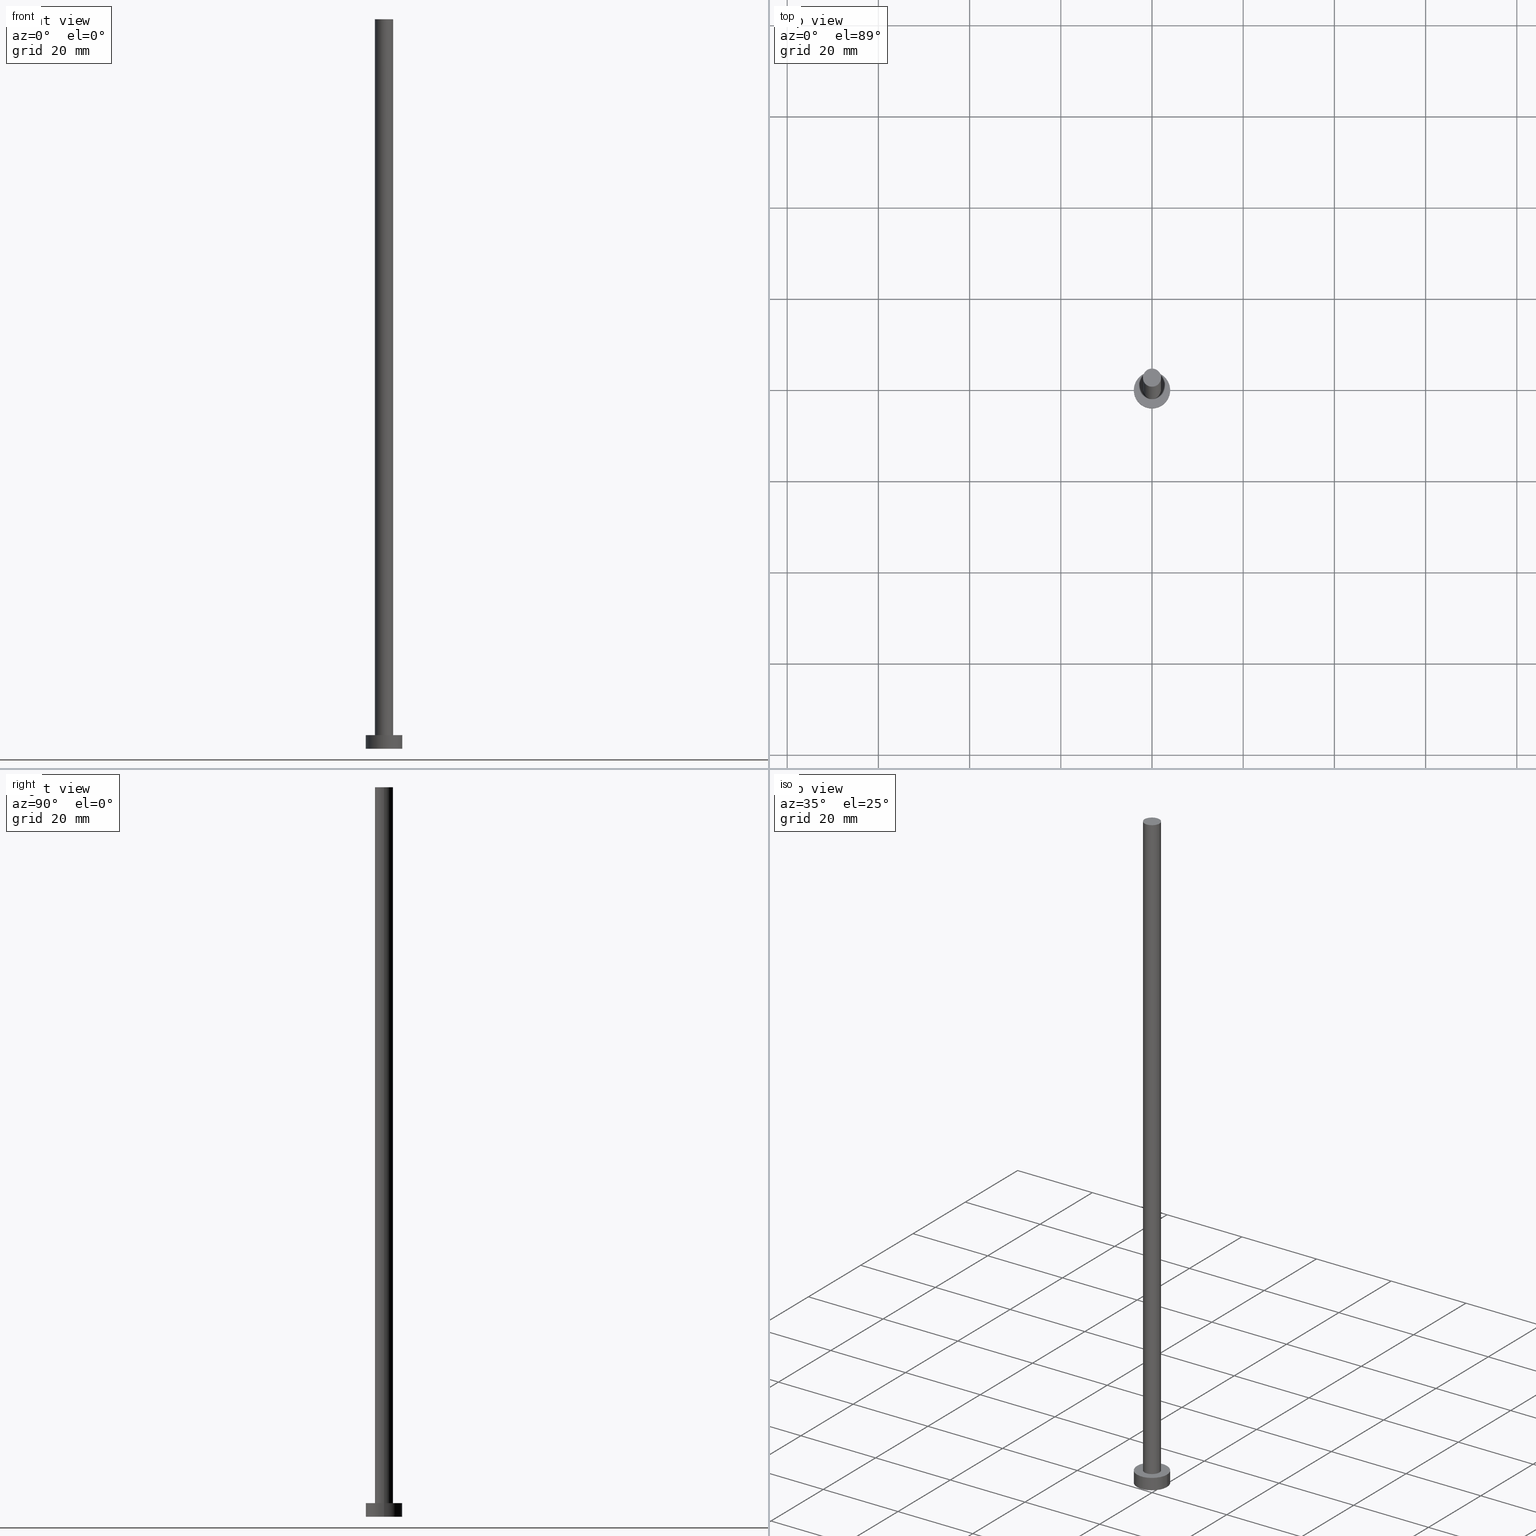
[diagram: canonical four-view strip — front | top / right | iso, engineering-drawing reading convention]
A machine part, canonical four-view strip (front | top / right | iso — engineering-drawing reading convention). The complete STEP part file that produces these views, byte-faithful:
ISO-10303-21;
HEADER;
FILE_DESCRIPTION (( 'STEP AP203' ),
    '1' );
FILE_NAME ('3ff8.STEP',
    '2023-02-13T15:07:44',
    ( '' ),
    ( '' ),
    'SwSTEP 2.0',
    'SolidWorks 2019',
    '' );
FILE_SCHEMA (( 'CONFIG_CONTROL_DESIGN' ));
ENDSEC;

DATA;
#1 = DIRECTION ( 'NONE',  ( 1.000000000000000000, 0.000000000000000000, -0.000000000000000000 ) ) ;
#2 = ORIENTED_EDGE ( 'NONE', *, *, #70, .F. ) ;
#3 = DIRECTION ( 'NONE',  ( -0.000000000000000000, -0.000000000000000000, -1.000000000000000000 ) ) ;
#4 = CALENDAR_DATE ( 2023, 13, 2 ) ;
#5 = DIRECTION ( 'NONE',  ( 1.000000000000000000, 0.000000000000000000, 0.000000000000000000 ) ) ;
#6 = LINE ( 'NONE', #13, #187 ) ;
#7 = PERSON_AND_ORGANIZATION ( #173, #100 ) ;
#8 = DIRECTION ( 'NONE',  ( 1.000000000000000000, 0.000000000000000000, 0.000000000000000000 ) ) ;
#9 =( NAMED_UNIT ( * ) PLANE_ANGLE_UNIT ( ) SI_UNIT ( $, .RADIAN. ) );
#10 = CALENDAR_DATE ( 2023, 13, 2 ) ;
#11 = APPROVAL ( #200, 'NEUR�EN�' ) ;
#12 = DIRECTION ( 'NONE',  ( 1.000000000000000000, 0.000000000000000000, 0.000000000000000000 ) ) ;
#13 = CARTESIAN_POINT ( 'NONE',  ( -4.000000000000000000, 0.000000000000000000, 3.000000000000000000 ) ) ;
#14 = MANIFOLD_SOLID_BREP ( 'P�idat vysunut�m3', #107 ) ;
#15 = DIRECTION ( 'NONE',  ( 1.000000000000000000, 0.000000000000000000, 0.000000000000000000 ) ) ;
#16 = APPROVAL_PERSON_ORGANIZATION ( #113, #188, #44 ) ;
#17 = ORIENTED_EDGE ( 'NONE', *, *, #183, .F. ) ;
#18 = DIRECTION ( 'NONE',  ( 0.000000000000000000, 0.000000000000000000, 1.000000000000000000 ) ) ;
#19 = LOCAL_TIME ( 16, 7, 44.00000000000000000, #198 ) ;
#20 = DIRECTION ( 'NONE',  ( 1.000000000000000000, 0.000000000000000000, -0.000000000000000000 ) ) ;
#21 = ORIENTED_EDGE ( 'NONE', *, *, #159, .T. ) ;
#22 = ORIENTED_EDGE ( 'NONE', *, *, #220, .F. ) ;
#23 = DIRECTION ( 'NONE',  ( 1.000000000000000000, 0.000000000000000000, 0.000000000000000000 ) ) ;
#24 = DATE_AND_TIME ( #83, #19 ) ;
#25 = CYLINDRICAL_SURFACE ( 'NONE', #238, 4.000000000000000000 ) ;
#26 = DIRECTION ( 'NONE',  ( 1.000000000000000000, 0.000000000000000000, 0.000000000000000000 ) ) ;
#27 = CC_DESIGN_APPROVAL ( #77, ( #97 ) ) ;
#28 = COORDINATED_UNIVERSAL_TIME_OFFSET ( 1, 0, .AHEAD. ) ;
#29 = ORIENTED_EDGE ( 'NONE', *, *, #139, .F. ) ;
#30 = PERSON_AND_ORGANIZATION_ROLE ( 'classification_officer' ) ;
#31 = EDGE_LOOP ( 'NONE', ( #74, #2 ) ) ;
#32 = AXIS2_PLACEMENT_3D ( 'NONE', #239, #177, #15 ) ;
#33 = CYLINDRICAL_SURFACE ( 'NONE', #150, 4.000000000000000000 ) ;
#34 = CIRCLE ( 'NONE', #176, 4.000000000000000000 ) ;
#35 = ORIENTED_EDGE ( 'NONE', *, *, #220, .T. ) ;
#36 = DIRECTION ( 'NONE',  ( 0.000000000000000000, 0.000000000000000000, 1.000000000000000000 ) ) ;
#37 = DIRECTION ( 'NONE',  ( -0.000000000000000000, -0.000000000000000000, -1.000000000000000000 ) ) ;
#38 = ADVANCED_FACE ( 'NONE', ( #55 ), #33, .T. ) ;
#39 = EDGE_LOOP ( 'NONE', ( #205, #105 ) ) ;
#40 = DIRECTION ( 'NONE',  ( -0.000000000000000000, -0.000000000000000000, -1.000000000000000000 ) ) ;
#41 = AXIS2_PLACEMENT_3D ( 'NONE', #213, #36, #1 ) ;
#42 = PRODUCT ( '3ff8', '3ff8', '', ( #163 ) ) ;
#43 = CARTESIAN_POINT ( 'NONE',  ( 0.000000000000000000, 0.000000000000000000, 3.000000000000000000 ) ) ;
#44 = APPROVAL_ROLE ( '' ) ;
#45 = CARTESIAN_POINT ( 'NONE',  ( 2.000000000000000000, 2.449293598294706414E-16, 160.0000000000000000 ) ) ;
#46 = APPLICATION_PROTOCOL_DEFINITION ( 'international standard', 'config_control_design', 1994, #222 ) ;
#47 = PERSON_AND_ORGANIZATION ( #173, #100 ) ;
#48 = DIRECTION ( 'NONE',  ( 0.000000000000000000, 0.000000000000000000, 1.000000000000000000 ) ) ;
#49 = CIRCLE ( 'NONE', #248, 2.000000000000000000 ) ;
#50 = PERSON_AND_ORGANIZATION ( #173, #100 ) ;
#51 = SECURITY_CLASSIFICATION_LEVEL ( 'unclassified' ) ;
#52 = EDGE_CURVE ( 'NONE', #92, #230, #61, .T. ) ;
#53 = CC_DESIGN_APPROVAL ( #188, ( #114 ) ) ;
#54 = ADVANCED_FACE ( 'NONE', ( #193 ), #58, .T. ) ;
#55 = FACE_OUTER_BOUND ( 'NONE', #72, .T. ) ;
#56 = DIRECTION ( 'NONE',  ( 1.000000000000000000, 0.000000000000000000, -0.000000000000000000 ) ) ;
#57 = ORIENTED_EDGE ( 'NONE', *, *, #206, .T. ) ;
#58 = PLANE ( 'NONE',  #235 ) ;
#59 = DIRECTION ( 'NONE',  ( -0.000000000000000000, -0.000000000000000000, -1.000000000000000000 ) ) ;
#60 = APPROVAL_DATE_TIME ( #24, #188 ) ;
#61 = CIRCLE ( 'NONE', #210, 2.000000000000000000 ) ;
#62 = CARTESIAN_POINT ( 'NONE',  ( 0.000000000000000000, 0.000000000000000000, 3.000000000000000000 ) ) ;
#63 = LOCAL_TIME ( 16, 7, 44.00000000000000000, #28 ) ;
#64 = PERSON_AND_ORGANIZATION_ROLE ( 'design_owner' ) ;
#65 = CARTESIAN_POINT ( 'NONE',  ( 0.000000000000000000, 0.000000000000000000, 0.000000000000000000 ) ) ;
#66 = DIRECTION ( 'NONE',  ( 0.000000000000000000, 0.000000000000000000, 1.000000000000000000 ) ) ;
#67 = VERTEX_POINT ( 'NONE', #232 ) ;
#68 = CIRCLE ( 'NONE', #252, 4.000000000000000000 ) ;
#69 = DIRECTION ( 'NONE',  ( -0.000000000000000000, -0.000000000000000000, -1.000000000000000000 ) ) ;
#70 = EDGE_CURVE ( 'NONE', #230, #92, #231, .T. ) ;
#71 = AXIS2_PLACEMENT_3D ( 'NONE', #43, #110, #23 ) ;
#72 = EDGE_LOOP ( 'NONE', ( #172, #209, #229, #22 ) ) ;
#73 = CC_DESIGN_PERSON_AND_ORGANIZATION_ASSIGNMENT ( #119, #225, ( #114 ) ) ;
#74 = ORIENTED_EDGE ( 'NONE', *, *, #52, .F. ) ;
#75 = PLANE ( 'NONE',  #41 ) ;
#76 = LINE ( 'NONE', #233, #125 ) ;
#77 = APPROVAL ( #181, 'NEUR�EN�' ) ;
#78 = VERTEX_POINT ( 'NONE', #134 ) ;
#79 = PRODUCT_DEFINITION_SHAPE ( 'NONE', 'NONE',  #201 ) ;
#80 = DATE_AND_TIME ( #4, #155 ) ;
#81 = CYLINDRICAL_SURFACE ( 'NONE', #89, 2.000000000000000000 ) ;
#82 = APPROVAL_STATUS ( 'not_yet_approved' ) ;
#83 = CALENDAR_DATE ( 2023, 13, 2 ) ;
#84 = EDGE_CURVE ( 'NONE', #215, #88, #242, .T. ) ;
#85 = APPROVAL_ROLE ( '' ) ;
#86 = CARTESIAN_POINT ( 'NONE',  ( -2.000000000000000000, 0.000000000000000000, 160.0000000000000000 ) ) ;
#87 = APPLICATION_CONTEXT ( 'configuration controlled 3d designs of mechanical parts and assemblies' ) ;
#88 = VERTEX_POINT ( 'NONE', #86 ) ;
#89 = AXIS2_PLACEMENT_3D ( 'NONE', #151, #59, #93 ) ;
#90 = DESIGN_CONTEXT ( 'detailed design', #87, 'design' ) ;
#91 = EDGE_CURVE ( 'NONE', #78, #67, #68, .T. ) ;
#92 = VERTEX_POINT ( 'NONE', #166 ) ;
#93 = DIRECTION ( 'NONE',  ( -1.000000000000000000, 0.000000000000000000, 0.000000000000000000 ) ) ;
#94 = CC_DESIGN_DATE_AND_TIME_ASSIGNMENT ( #244, #95, ( #97 ) ) ;
#95 = DATE_TIME_ROLE ( 'classification_date' ) ;
#96 = DIRECTION ( 'NONE',  ( 1.000000000000000000, 0.000000000000000000, 0.000000000000000000 ) ) ;
#97 = SECURITY_CLASSIFICATION ( '', '', #51 ) ;
#98 = COORDINATED_UNIVERSAL_TIME_OFFSET ( 1, 0, .AHEAD. ) ;
#99 = CARTESIAN_POINT ( 'NONE',  ( -4.000000000000000000, 0.000000000000000000, 3.000000000000000000 ) ) ;
#100 = ORGANIZATION ( 'NEUR�EN�', 'NEUR�EN�', '' ) ;
#101 = CALENDAR_DATE ( 2023, 13, 2 ) ;
#102 = CARTESIAN_POINT ( 'NONE',  ( 0.000000000000000000, 0.000000000000000000, 3.000000000000000000 ) ) ;
#103 = EDGE_CURVE ( 'NONE', #88, #215, #49, .T. ) ;
#104 = EDGE_LOOP ( 'NONE', ( #21, #57 ) ) ;
#105 = ORIENTED_EDGE ( 'NONE', *, *, #84, .T. ) ;
#106 = CARTESIAN_POINT ( 'NONE',  ( 2.000000000000000000, 2.449293598294706414E-16, 160.0000000000000000 ) ) ;
#107 = CLOSED_SHELL ( 'NONE', ( #165, #38, #255, #170, #157, #122, #54 ) ) ;
#108 = ORIENTED_EDGE ( 'NONE', *, *, #52, .T. ) ;
#109 = COORDINATED_UNIVERSAL_TIME_OFFSET ( 1, 0, .AHEAD. ) ;
#110 = DIRECTION ( 'NONE',  ( 0.000000000000000000, 0.000000000000000000, 1.000000000000000000 ) ) ;
#111 = SHAPE_DEFINITION_REPRESENTATION ( #79, #132 ) ;
#112 =( LENGTH_UNIT ( ) NAMED_UNIT ( * ) SI_UNIT ( .MILLI., .METRE. ) );
#113 = PERSON_AND_ORGANIZATION ( #173, #100 ) ;
#114 = PRODUCT_DEFINITION_FORMATION_WITH_SPECIFIED_SOURCE ( 'LIBOVOLN�', '', #42, .NOT_KNOWN. ) ;
#115 = CALENDAR_DATE ( 2023, 13, 2 ) ;
#116 = CIRCLE ( 'NONE', #154, 4.000000000000000000 ) ;
#117 = DIRECTION ( 'NONE',  ( 1.000000000000000000, 0.000000000000000000, 0.000000000000000000 ) ) ;
#118 =( GEOMETRIC_REPRESENTATION_CONTEXT ( 3 ) GLOBAL_UNCERTAINTY_ASSIGNED_CONTEXT ( ( #192 ) ) GLOBAL_UNIT_ASSIGNED_CONTEXT ( ( #112, #9, #218 ) ) REPRESENTATION_CONTEXT ( 'NONE', 'WORKASPACE' ) );
#119 = PERSON_AND_ORGANIZATION ( #173, #100 ) ;
#120 = AXIS2_PLACEMENT_3D ( 'NONE', #207, #228, #142 ) ;
#121 = EDGE_LOOP ( 'NONE', ( #195, #249 ) ) ;
#122 = ADVANCED_FACE ( 'NONE', ( #146 ), #246, .T. ) ;
#123 = AXIS2_PLACEMENT_3D ( 'NONE', #240, #130, #56 ) ;
#124 = DIRECTION ( 'NONE',  ( 0.000000000000000000, 0.000000000000000000, 1.000000000000000000 ) ) ;
#125 = VECTOR ( 'NONE', #138, 1000.000000000000000 ) ;
#126 = FACE_OUTER_BOUND ( 'NONE', #104, .T. ) ;
#127 = ORIENTED_EDGE ( 'NONE', *, *, #139, .T. ) ;
#128 = CARTESIAN_POINT ( 'NONE',  ( -2.000000000000000000, 0.000000000000000000, 160.0000000000000000 ) ) ;
#129 = DIRECTION ( 'NONE',  ( 0.000000000000000000, 0.000000000000000000, 1.000000000000000000 ) ) ;
#130 = DIRECTION ( 'NONE',  ( 0.000000000000000000, 0.000000000000000000, 1.000000000000000000 ) ) ;
#131 = FACE_BOUND ( 'NONE', #31, .T. ) ;
#132 = ADVANCED_BREP_SHAPE_REPRESENTATION ( '3ff8', ( #14, #171 ), #118 ) ;
#133 = EDGE_CURVE ( 'NONE', #67, #78, #116, .T. ) ;
#134 = CARTESIAN_POINT ( 'NONE',  ( 4.000000000000000000, 4.898587196589412829E-16, 0.000000000000000000 ) ) ;
#135 = DIRECTION ( 'NONE',  ( -0.000000000000000000, -0.000000000000000000, -1.000000000000000000 ) ) ;
#136 = CC_DESIGN_APPROVAL ( #11, ( #201 ) ) ;
#137 = APPROVAL_DATE_TIME ( #80, #77 ) ;
#138 = DIRECTION ( 'NONE',  ( -0.000000000000000000, -0.000000000000000000, -1.000000000000000000 ) ) ;
#139 = EDGE_CURVE ( 'NONE', #215, #230, #194, .T. ) ;
#140 = ORIENTED_EDGE ( 'NONE', *, *, #70, .T. ) ;
#141 = AXIS2_PLACEMENT_3D ( 'NONE', #197, #217, #8 ) ;
#142 = DIRECTION ( 'NONE',  ( -1.000000000000000000, 0.000000000000000000, 0.000000000000000000 ) ) ;
#143 = PERSON_AND_ORGANIZATION_ROLE ( 'creator' ) ;
#144 = CIRCLE ( 'NONE', #71, 4.000000000000000000 ) ;
#145 = EDGE_CURVE ( 'NONE', #88, #92, #156, .T. ) ;
#146 = FACE_OUTER_BOUND ( 'NONE', #148, .T. ) ;
#147 = APPROVAL_PERSON_ORGANIZATION ( #179, #77, #85 ) ;
#148 = EDGE_LOOP ( 'NONE', ( #29, #149, #196, #108 ) ) ;
#149 = ORIENTED_EDGE ( 'NONE', *, *, #103, .F. ) ;
#150 = AXIS2_PLACEMENT_3D ( 'NONE', #214, #37, #234 ) ;
#151 = CARTESIAN_POINT ( 'NONE',  ( 0.000000000000000000, 0.000000000000000000, 160.0000000000000000 ) ) ;
#152 = DIRECTION ( 'NONE',  ( 1.000000000000000000, 0.000000000000000000, 0.000000000000000000 ) ) ;
#153 = FACE_OUTER_BOUND ( 'NONE', #121, .T. ) ;
#154 = AXIS2_PLACEMENT_3D ( 'NONE', #169, #129, #5 ) ;
#155 = LOCAL_TIME ( 16, 7, 44.00000000000000000, #243 ) ;
#156 = LINE ( 'NONE', #128, #175 ) ;
#157 = ADVANCED_FACE ( 'NONE', ( #153 ), #236, .F. ) ;
#158 = PERSON_AND_ORGANIZATION_ROLE ( 'creator' ) ;
#159 = EDGE_CURVE ( 'NONE', #254, #224, #144, .T. ) ;
#160 = DIRECTION ( 'NONE',  ( 0.000000000000000000, 0.000000000000000000, 1.000000000000000000 ) ) ;
#161 = CC_DESIGN_SECURITY_CLASSIFICATION ( #97, ( #114 ) ) ;
#162 = APPROVAL_ROLE ( '' ) ;
#163 = MECHANICAL_CONTEXT ( 'NONE', #222, 'mechanical' ) ;
#164 = ORIENTED_EDGE ( 'NONE', *, *, #133, .T. ) ;
#165 = ADVANCED_FACE ( 'NONE', ( #174 ), #81, .T. ) ;
#166 = CARTESIAN_POINT ( 'NONE',  ( -2.000000000000000000, 0.000000000000000000, 3.000000000000000000 ) ) ;
#167 = CC_DESIGN_DATE_AND_TIME_ASSIGNMENT ( #186, #247, ( #201 ) ) ;
#168 = CARTESIAN_POINT ( 'NONE',  ( 0.000000000000000000, 0.000000000000000000, 160.0000000000000000 ) ) ;
#169 = CARTESIAN_POINT ( 'NONE',  ( 0.000000000000000000, 0.000000000000000000, 0.000000000000000000 ) ) ;
#170 = ADVANCED_FACE ( 'NONE', ( #131, #126 ), #75, .T. ) ;
#171 = AXIS2_PLACEMENT_3D ( 'NONE', #223, #160, #96 ) ;
#172 = ORIENTED_EDGE ( 'NONE', *, *, #206, .F. ) ;
#173 = PERSON ( 'NEUR�EN�', 'NEUR�EN�', 'NEUR�EN�', ('NEUR�EN�'), ('NEUR�EN�'), ('NEUR�EN�') ) ;
#174 = FACE_OUTER_BOUND ( 'NONE', #189, .T. ) ;
#175 = VECTOR ( 'NONE', #3, 1000.000000000000000 ) ;
#176 = AXIS2_PLACEMENT_3D ( 'NONE', #180, #66, #26 ) ;
#177 = DIRECTION ( 'NONE',  ( 0.000000000000000000, 0.000000000000000000, 1.000000000000000000 ) ) ;
#178 = CARTESIAN_POINT ( 'NONE',  ( 4.000000000000000000, 4.898587196589412829E-16, 3.000000000000000000 ) ) ;
#179 = PERSON_AND_ORGANIZATION ( #173, #100 ) ;
#180 = CARTESIAN_POINT ( 'NONE',  ( 0.000000000000000000, 0.000000000000000000, 3.000000000000000000 ) ) ;
#181 = APPROVAL_STATUS ( 'not_yet_approved' ) ;
#182 = FACE_OUTER_BOUND ( 'NONE', #212, .T. ) ;
#183 = EDGE_CURVE ( 'NONE', #224, #78, #76, .T. ) ;
#184 = DATE_AND_TIME ( #115, #237 ) ;
#185 = DIRECTION ( 'NONE',  ( 0.000000000000000000, 0.000000000000000000, 1.000000000000000000 ) ) ;
#186 = DATE_AND_TIME ( #101, #63 ) ;
#187 = VECTOR ( 'NONE', #135, 1000.000000000000000 ) ;
#188 = APPROVAL ( #82, 'NEUR�EN�' ) ;
#189 = EDGE_LOOP ( 'NONE', ( #227, #127, #140, #191 ) ) ;
#190 = VECTOR ( 'NONE', #40, 1000.000000000000000 ) ;
#191 = ORIENTED_EDGE ( 'NONE', *, *, #145, .F. ) ;
#192 = UNCERTAINTY_MEASURE_WITH_UNIT (LENGTH_MEASURE( 1.000000000000000082E-05 ), #112, 'distance_accuracy_value', 'NONE');
#193 = FACE_OUTER_BOUND ( 'NONE', #39, .T. ) ;
#194 = LINE ( 'NONE', #106, #190 ) ;
#195 = ORIENTED_EDGE ( 'NONE', *, *, #133, .F. ) ;
#196 = ORIENTED_EDGE ( 'NONE', *, *, #145, .T. ) ;
#197 = CARTESIAN_POINT ( 'NONE',  ( 0.000000000000000000, 0.000000000000000000, 3.000000000000000000 ) ) ;
#198 = COORDINATED_UNIVERSAL_TIME_OFFSET ( 1, 0, .AHEAD. ) ;
#199 = LOCAL_TIME ( 16, 7, 44.00000000000000000, #109 ) ;
#200 = APPROVAL_STATUS ( 'not_yet_approved' ) ;
#201 = PRODUCT_DEFINITION ( 'NEZN�M�', '', #114, #90 ) ;
#202 = DIRECTION ( 'NONE',  ( -1.000000000000000000, 0.000000000000000000, 0.000000000000000000 ) ) ;
#203 = PRODUCT_RELATED_PRODUCT_CATEGORY ( 'detail', '', ( #42 ) ) ;
#204 = APPROVAL_DATE_TIME ( #184, #11 ) ;
#205 = ORIENTED_EDGE ( 'NONE', *, *, #103, .T. ) ;
#206 = EDGE_CURVE ( 'NONE', #224, #254, #34, .T. ) ;
#207 = CARTESIAN_POINT ( 'NONE',  ( 0.000000000000000000, 0.000000000000000000, 160.0000000000000000 ) ) ;
#208 = PERSON_AND_ORGANIZATION ( #173, #100 ) ;
#209 = ORIENTED_EDGE ( 'NONE', *, *, #183, .T. ) ;
#210 = AXIS2_PLACEMENT_3D ( 'NONE', #102, #18, #152 ) ;
#211 = ORIENTED_EDGE ( 'NONE', *, *, #159, .F. ) ;
#212 = EDGE_LOOP ( 'NONE', ( #17, #211, #35, #164 ) ) ;
#213 = CARTESIAN_POINT ( 'NONE',  ( 0.000000000000000000, 0.000000000000000000, 3.000000000000000000 ) ) ;
#214 = CARTESIAN_POINT ( 'NONE',  ( 0.000000000000000000, 0.000000000000000000, 3.000000000000000000 ) ) ;
#215 = VERTEX_POINT ( 'NONE', #45 ) ;
#216 = CC_DESIGN_PERSON_AND_ORGANIZATION_ASSIGNMENT ( #245, #158, ( #201 ) ) ;
#217 = DIRECTION ( 'NONE',  ( 0.000000000000000000, 0.000000000000000000, 1.000000000000000000 ) ) ;
#218 =( NAMED_UNIT ( * ) SI_UNIT ( $, .STERADIAN. ) SOLID_ANGLE_UNIT ( ) );
#219 = APPROVAL_PERSON_ORGANIZATION ( #47, #11, #162 ) ;
#220 = EDGE_CURVE ( 'NONE', #254, #67, #6, .T. ) ;
#221 = APPLICATION_PROTOCOL_DEFINITION ( 'international standard', 'config_control_design', 1994, #87 ) ;
#222 = APPLICATION_CONTEXT ( 'configuration controlled 3d designs of mechanical parts and assemblies' ) ;
#223 = CARTESIAN_POINT ( 'NONE',  ( 0.000000000000000000, 0.000000000000000000, 0.000000000000000000 ) ) ;
#224 = VERTEX_POINT ( 'NONE', #178 ) ;
#225 = PERSON_AND_ORGANIZATION_ROLE ( 'design_supplier' ) ;
#226 = CC_DESIGN_PERSON_AND_ORGANIZATION_ASSIGNMENT ( #7, #143, ( #114 ) ) ;
#227 = ORIENTED_EDGE ( 'NONE', *, *, #84, .F. ) ;
#228 = DIRECTION ( 'NONE',  ( -0.000000000000000000, -0.000000000000000000, -1.000000000000000000 ) ) ;
#229 = ORIENTED_EDGE ( 'NONE', *, *, #91, .T. ) ;
#230 = VERTEX_POINT ( 'NONE', #241 ) ;
#231 = CIRCLE ( 'NONE', #141, 2.000000000000000000 ) ;
#232 = CARTESIAN_POINT ( 'NONE',  ( -4.000000000000000000, 0.000000000000000000, 0.000000000000000000 ) ) ;
#233 = CARTESIAN_POINT ( 'NONE',  ( 4.000000000000000000, 4.898587196589412829E-16, 3.000000000000000000 ) ) ;
#234 = DIRECTION ( 'NONE',  ( -1.000000000000000000, 0.000000000000000000, 0.000000000000000000 ) ) ;
#235 = AXIS2_PLACEMENT_3D ( 'NONE', #168, #124, #20 ) ;
#236 = PLANE ( 'NONE',  #123 ) ;
#237 = LOCAL_TIME ( 16, 7, 44.00000000000000000, #98 ) ;
#238 = AXIS2_PLACEMENT_3D ( 'NONE', #62, #69, #202 ) ;
#239 = CARTESIAN_POINT ( 'NONE',  ( 0.000000000000000000, 0.000000000000000000, 160.0000000000000000 ) ) ;
#240 = CARTESIAN_POINT ( 'NONE',  ( 0.000000000000000000, 0.000000000000000000, 0.000000000000000000 ) ) ;
#241 = CARTESIAN_POINT ( 'NONE',  ( 2.000000000000000000, 2.449293598294706414E-16, 3.000000000000000000 ) ) ;
#242 = CIRCLE ( 'NONE', #32, 2.000000000000000000 ) ;
#243 = COORDINATED_UNIVERSAL_TIME_OFFSET ( 1, 0, .AHEAD. ) ;
#244 = DATE_AND_TIME ( #10, #199 ) ;
#245 = PERSON_AND_ORGANIZATION ( #173, #100 ) ;
#246 = CYLINDRICAL_SURFACE ( 'NONE', #120, 2.000000000000000000 ) ;
#247 = DATE_TIME_ROLE ( 'creation_date' ) ;
#248 = AXIS2_PLACEMENT_3D ( 'NONE', #251, #185, #12 ) ;
#249 = ORIENTED_EDGE ( 'NONE', *, *, #91, .F. ) ;
#250 = CC_DESIGN_PERSON_AND_ORGANIZATION_ASSIGNMENT ( #50, #64, ( #42 ) ) ;
#251 = CARTESIAN_POINT ( 'NONE',  ( 0.000000000000000000, 0.000000000000000000, 160.0000000000000000 ) ) ;
#252 = AXIS2_PLACEMENT_3D ( 'NONE', #65, #48, #117 ) ;
#253 = CC_DESIGN_PERSON_AND_ORGANIZATION_ASSIGNMENT ( #208, #30, ( #97 ) ) ;
#254 = VERTEX_POINT ( 'NONE', #99 ) ;
#255 = ADVANCED_FACE ( 'NONE', ( #182 ), #25, .T. ) ;
ENDSEC;
END-ISO-10303-21;
